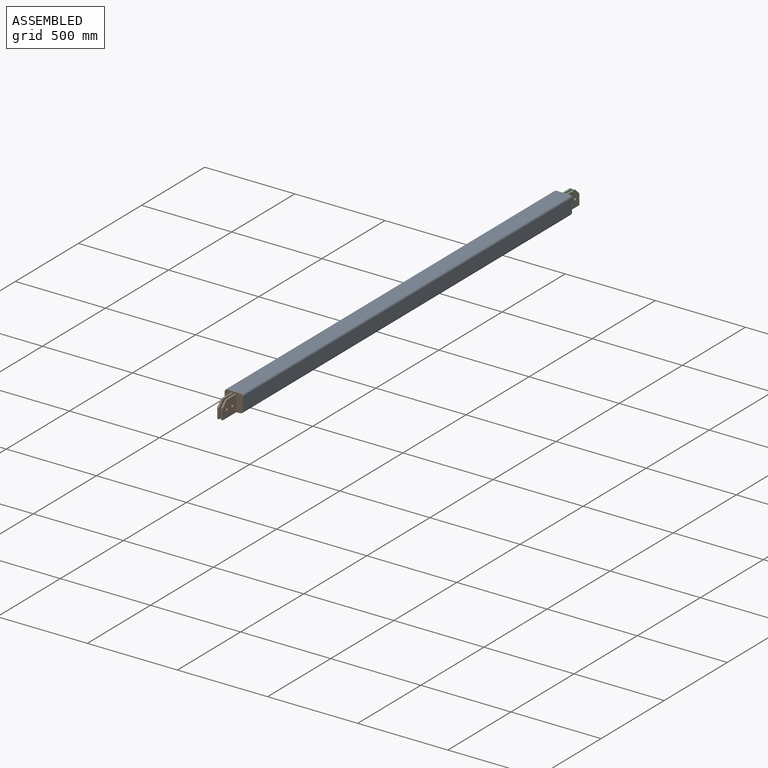
[diagram: assembled view]
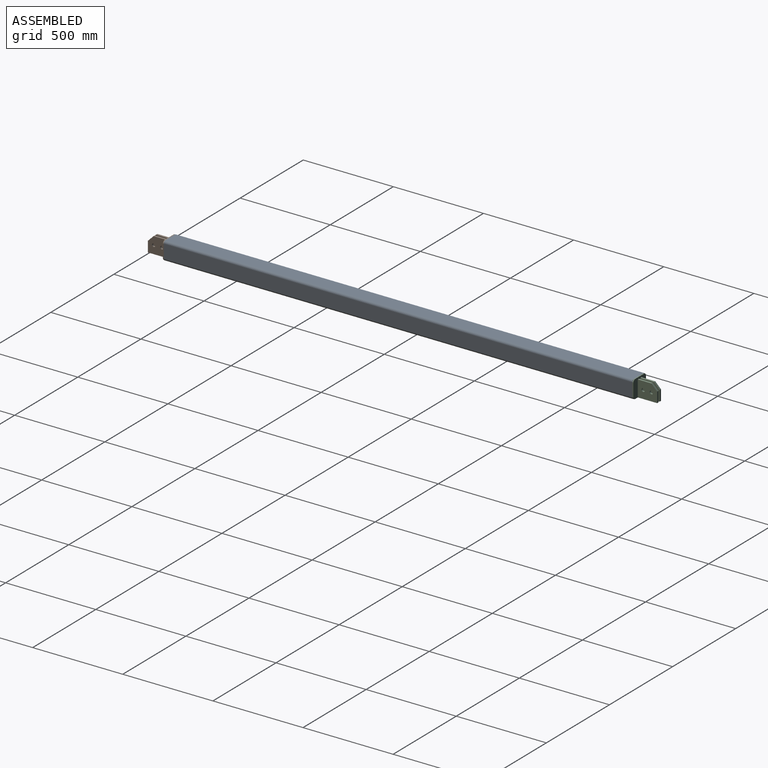
[diagram: assembled view, second angle]
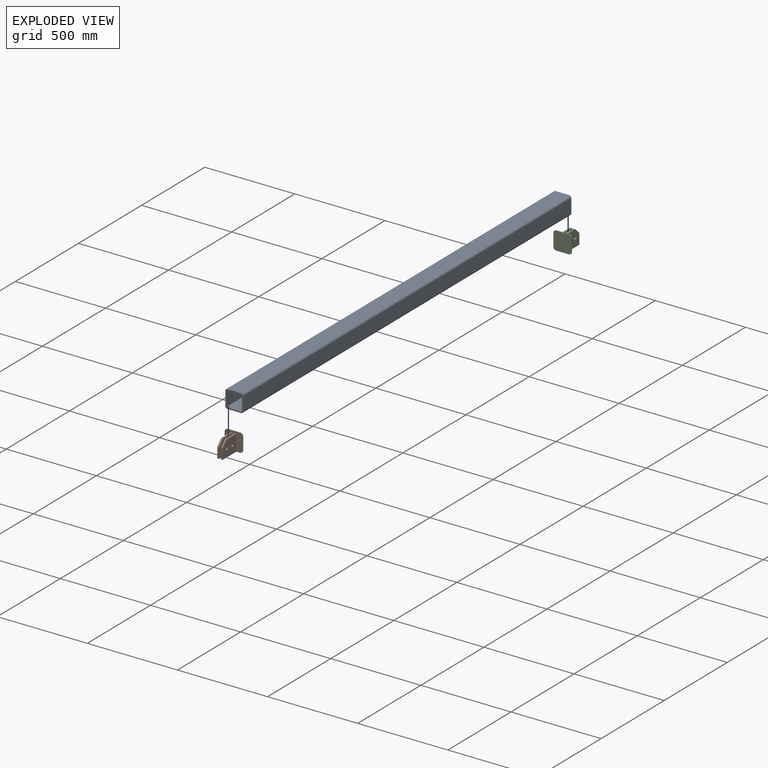
[diagram: exploded view]
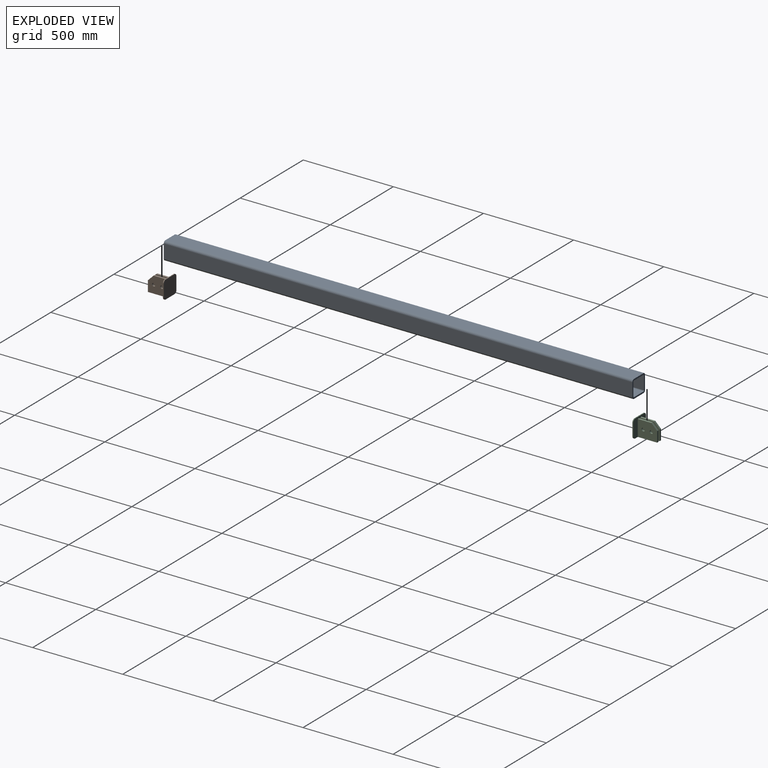
[diagram: exploded view, second angle]
ASSEMBLY  parts=3 mates=2
PART A: 18 faces, bbox 100x2600x100 mm
  f0: cylinder r=12.5mm len=2600mm, axis (0,1,0), area 51050.7mm2, adj f6,f7,f8,f9
  f1: cylinder r=12.5mm len=2600mm, axis (0,1,0), area 51050.7mm2, adj f5,f7,f8,f9
  f2: cylinder r=12.5mm len=2600mm, axis (0,1,0), area 51050.7mm2, adj f3,f5,f8,f9
  f3: plane 2600x75mm, normal (0,0,-1), area 195000mm2, adj f2,f4,f8,f9
  f4: cylinder r=12.5mm len=2600mm, axis (0,1,0), area 51050.7mm2, adj f3,f6,f8,f9
  f5: plane 2600x75mm, normal (-1,0,0), area 195000mm2, adj f1,f2,f8,f9
  f6: plane 2600x75mm, normal (1,0,0), area 195000mm2, adj f0,f4,f8,f9
  f7: plane 2600x75mm, normal (0,0,1), area 195000mm2, adj f0,f1,f8,f9
  f8: plane 100x100mm, normal (0,-1,0), area 2827.3mm2, adj f0,f1,f2,f3,f4,f5,f6,f7
  f9: plane 100x100mm, normal (0,1,0), area 2827.3mm2, adj f0,f1,f2,f3,f4,f5,f6,f7
  f10: plane 2600x75mm, normal (1,0,0), area 195000mm2, adj f8,f9,f11,f17
  f11: cylinder r=4.5mm len=2600mm, axis (0,1,0), area 18378mm2, adj f8,f9,f10,f12
  f12: plane 2600x75mm, normal (0,0,1), area 195000mm2, adj f8,f9,f11,f13
  f13: cylinder r=4.5mm len=2600mm, axis (0,1,0), area 18378mm2, adj f8,f9,f12,f14
  f14: plane 2600x75mm, normal (-1,0,0), area 195000mm2, adj f8,f9,f13,f15
  f15: cylinder r=4.5mm len=2600mm, axis (0,1,0), area 18378mm2, adj f8,f9,f14,f16
  f16: plane 2600x75mm, normal (0,0,-1), area 195000mm2, adj f8,f9,f15,f17
  f17: cylinder r=4.5mm len=2600mm, axis (0,1,0), area 18378mm2, adj f8,f9,f10,f16
PART B: 24 faces, bbox 100x113x100 mm
  f0: plane 108x90mm, normal (-1,0,0), area 8706.1mm2, adj f4,f9,f11,f18,f19,f22,f23
  f1: plane 108x90mm, normal (-1,0,0), area 8706.1mm2, adj f3,f9,f11,f16,f17,f20,f21
  f2: plane 108x90mm, normal (1,0,0), area 8706.1mm2, adj f3,f9,f11,f16,f17,f20,f21
  f3: plane 76.22x10mm, normal (0,0,1), area 762.2mm2, adj f1,f2,f9,f21
  f4: plane 76.22x10mm, normal (0,0,1), area 762.2mm2, adj f0,f5,f9,f22
  f5: plane 108x90mm, normal (1,0,0), area 8706.1mm2, adj f4,f9,f11,f18,f19,f22,f23
  f6: plane 70x5mm, normal (-1,0,0), area 350mm2, adj f7,f9,f13,f15
  f7: plane 100x100mm, normal (0,-1,0), area 9806.9mm2, adj f6,f8,f10,f11,f12,f13,f14,f15
  f8: plane 70x5mm, normal (1,0,0), area 350mm2, adj f7,f9,f12,f14
  f9: plane 100x100mm, normal (0,1,0), area 8006.9mm2, adj f0,f1,f2,f3,f4,f5,f6,f8
  f10: plane 70x5mm, normal (0,0,1), area 350mm2, adj f7,f9,f14,f15
  f11: plane 113x70mm, normal (0,0,-1), area 2510mm2, adj f0,f1,f2,f5,f7,f9,f12,f13
  f12: cylinder r=15mm len=15mm, axis (0,1,0), area 117.8mm2, adj f7,f8,f9,f11
  f13: cylinder r=15mm len=15mm, axis (0,-1,0), area 117.8mm2, adj f6,f7,f9,f11
  f14: cylinder r=15mm len=15mm, axis (0,-1,0), area 117.8mm2, adj f7,f8,f9,f10
  f15: cylinder r=15mm len=15mm, axis (0,1,0), area 117.8mm2, adj f6,f7,f9,f10
  f16: cylinder r=9mm len=18mm, axis (1,0,0), area 565.5mm2, adj f1,f2
  f17: cylinder r=9mm len=18mm, axis (1,0,0), area 565.5mm2, adj f1,f2
  f18: cylinder r=9mm len=18mm, axis (1,0,0), area 565.5mm2, adj f0,f5
  f19: cylinder r=9mm len=18mm, axis (1,0,0), area 565.5mm2, adj f0,f5
  f20: plane 58.22x10mm, normal (0,1,0), area 582.2mm2, adj f1,f2,f11,f21
  f21: plane 31.78x31.78mm, normal (0,0.71,0.71), area 449.4mm2, adj f1,f2,f3,f20
  f22: plane 31.78x31.78mm, normal (0,0.71,0.71), area 449.4mm2, adj f0,f4,f5,f23
  f23: plane 58.22x10mm, normal (0,1,0), area 582.2mm2, adj f0,f5,f11,f22
PART C: same geometry as B
PLACE A t=(-978.77,362.14,-3064.89)mm
PLACE B rot(axis=(0,0,1),180deg) t=(571.23,-942.86,35.11)mm
PLACE C t=(571.23,1667.14,35.11)mm
MATE fastened B.f10 <-> A.f7  axis (0,0,1) through (571.23,-937.86,135.11)mm
MATE fastened C.f10 <-> A.f7  axis (0,0,1) through (571.23,1662.14,135.11)mm
